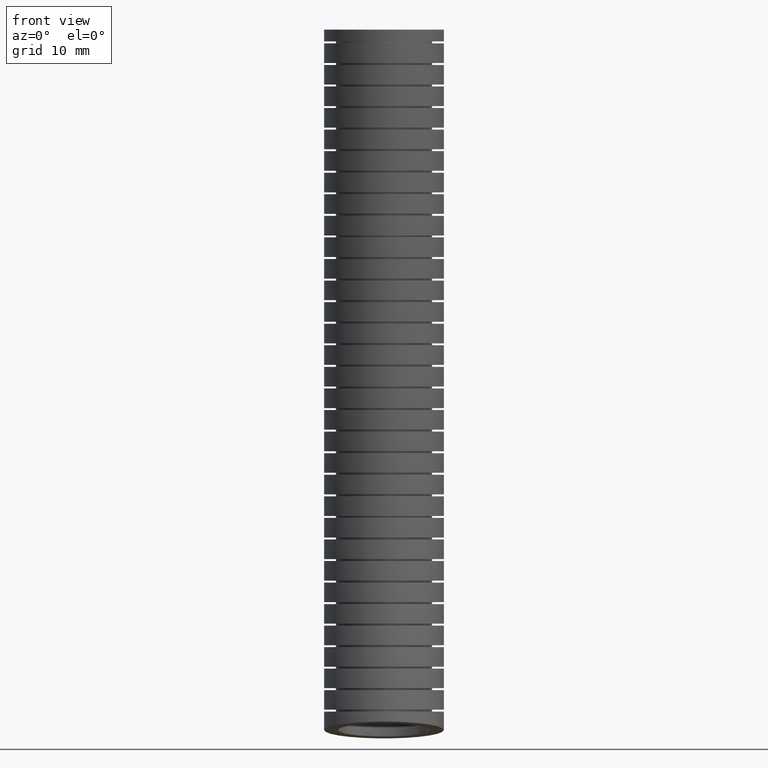
[diagram: clean part render]
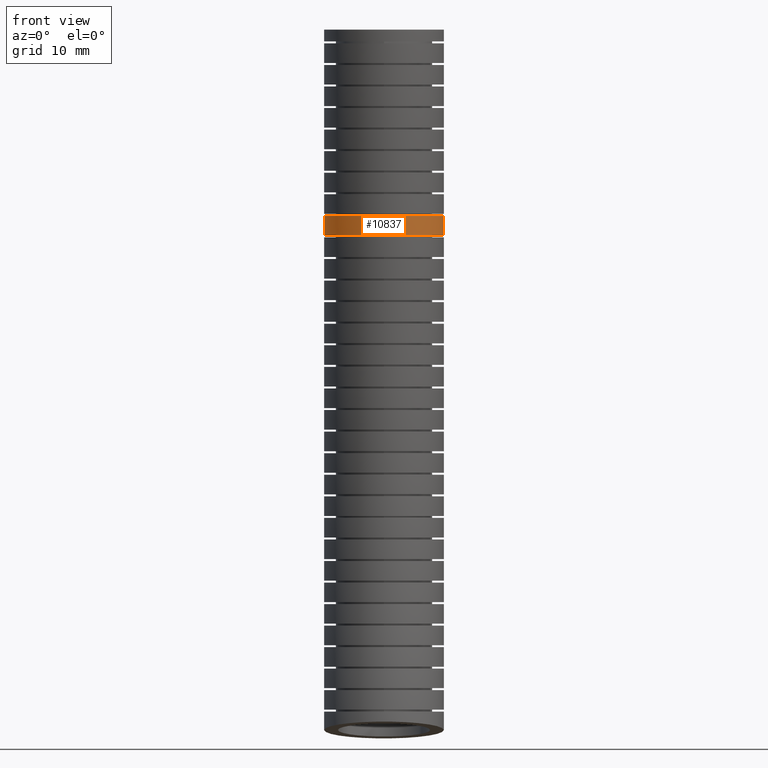
[diagram: same view with one face highlighted and labeled with its STEP entity id]
A machine part, front view. The second image highlights one B-rep face of the part: STEP entity #10837.
In plain terms, the highlighted face is a freeform B-spline surface patch.
Its self-contained STEP definition (entity closure, byte-faithful):
#3144 = VERTEX_POINT ( 'NONE', #7371 ) ;
#7371 = CARTESIAN_POINT ( 'NONE',  ( 0.3050000000000000500, 0.04331547454700521900, -1.049162933928018800 ) ) ;
#10830 = EDGE_LOOP ( 'NONE', ( #10869, #10874, #10849, #10853 ) ) ;
#10837 = ADVANCED_FACE ( 'NONE', ( #16019 ), #16076, .T. ) ;
#10838 = EDGE_CURVE ( 'NONE', #10868, #3144, #16078, .T. ) ;
#10843 = VERTEX_POINT ( 'NONE', #16165 ) ;
#10849 = ORIENTED_EDGE ( 'NONE', *, *, #10838, .T. ) ;
#10852 = EDGE_CURVE ( 'NONE', #10856, #3144, #16272, .T. ) ;
#10853 = ORIENTED_EDGE ( 'NONE', *, *, #10852, .F. ) ;
#10856 = VERTEX_POINT ( 'NONE', #16345 ) ;
#10868 = VERTEX_POINT ( 'NONE', #16505 ) ;
#10869 = ORIENTED_EDGE ( 'NONE', *, *, #10876, .T. ) ;
#10870 = EDGE_CURVE ( 'NONE', #10843, #10868, #16499, .T. ) ;
#10874 = ORIENTED_EDGE ( 'NONE', *, *, #10870, .T. ) ;
#10876 = EDGE_CURVE ( 'NONE', #10856, #10843, #16492, .T. ) ;
#16019 = FACE_OUTER_BOUND ( 'NONE', #10830, .T. ) ;
#16057 = CARTESIAN_POINT ( 'NONE',  ( -0.3050000000000001600, -0.5794800608306244200, -0.6605737911785694000 ) ) ;
#16058 = CARTESIAN_POINT ( 'NONE',  ( -0.3050000000000001000, -0.6100000000000001000, 0.0000000000000000000 ) ) ;
#16059 = CARTESIAN_POINT ( 'NONE',  ( 0.3049999999999999400, -0.6339397472009050700, -3.484228316147418800 ) ) ;
#16060 = CARTESIAN_POINT ( 'NONE',  ( 0.3049999999999999400, -0.6165911457587421900, -3.301565899820480900 ) ) ;
#16061 = CARTESIAN_POINT ( 'NONE',  ( 0.3049999999999999400, -0.5689348463287677800, -2.799795492787948300 ) ) ;
#16062 = CARTESIAN_POINT ( 'NONE',  ( 0.3050000000000000500, -0.5337097317260344200, -1.651227135941712300 ) ) ;
#16063 = CARTESIAN_POINT ( 'NONE',  ( 0.3050000000000000500, -0.5794800608306244200, -0.6605737911785694000 ) ) ;
#16064 = CARTESIAN_POINT ( 'NONE',  ( 0.3050000000000000500, -0.6100000000000001000, 0.0000000000000000000 ) ) ;
#16065 = CARTESIAN_POINT ( 'NONE',  ( 0.3049999999999999900, -0.02999999999999999900, -3.569999999999999400 ) ) ;
#16066 = CARTESIAN_POINT ( 'NONE',  ( 0.3049999999999999400, -0.01189670328115252300, -3.380058092153300100 ) ) ;
#16067 = CARTESIAN_POINT ( 'NONE',  ( 0.3049999999999999900, 0.03783273064349424600, -2.858291051460112500 ) ) ;
#16068 = CARTESIAN_POINT ( 'NONE',  ( 0.3049999999999999900, 0.07694042471324438700, -1.669468061939300500 ) ) ;
#16069 = CARTESIAN_POINT ( 'NONE',  ( 0.3050000000000000500, 0.03078003440073750300, -0.6678710777714059700 ) ) ;
#16070 = CARTESIAN_POINT ( 'NONE',  ( 0.3050000000000000500, 0.0000000000000000000, 0.0000000000000000000 ) ) ;
#16071 = CARTESIAN_POINT ( 'NONE',  ( -0.2947656487195840500, -0.03563502776016323100, -1.049162934120069200 ) ) ;
#16072 = CARTESIAN_POINT ( 'NONE',  ( -0.2972209294139726000, -0.02583249983281181400, -1.049162934120068600 ) ) ;
#16073 = CARTESIAN_POINT ( 'NONE',  ( -0.3030700833502435500, 0.003642539067587856900, -1.049162934120068600 ) ) ;
#16074 = CARTESIAN_POINT ( 'NONE',  ( -0.3049999999999999900, 0.02341769825993283600, -1.049162934120068100 ) ) ;
#16075 = CARTESIAN_POINT ( 'NONE',  ( -0.3050000000000000500, 0.04331547455917279800, -1.049162934120069200 ) ) ;
#16076 =( BOUNDED_SURFACE ( )  B_SPLINE_SURFACE ( 3, 3, ( 
 ( #16070, #16069, #16068, #16067, #16066, #16065 ),
 ( #16064, #16063, #16062, #16061, #16060, #16059 ),
 ( #16058, #16057, #16106, #16105, #16104, #16103 ),
 ( #16102, #16101, #16100, #16099, #16098, #16097 ),
 ( #16096, #16095, #16094, #16093, #16092, #16091 ),
 ( #16090, #16089, #16088, #16087, #16086, #16085 ),
 ( #16084, #16083, #16082, #16081, #16080, #16079 ) ),
 .UNSPECIFIED., .F., .F., .F. ) 
 B_SPLINE_SURFACE_WITH_KNOTS ( ( 4, 3, 4 ),
 ( 4, 1, 1, 4 ),
 ( 0.0000000000000000000, 0.5000000000000000000, 1.000000000000000000 ),
 ( 0.0000000000000000000, 0.5599999999999999400, 0.8398242262648183400, 1.000000000000000000 ),
 .UNSPECIFIED. ) 
 GEOMETRIC_REPRESENTATION_ITEM ( )  RATIONAL_B_SPLINE_SURFACE ( (
 ( 1.000000000000000000, 1.000000000000000000, 1.000000000000000200, 1.000000000000000000, 1.000000000000000000, 1.000000000000000000),
 ( 0.3333333333333333100, 0.3333333333333333100, 0.3333333333333333100, 0.3333333333333333100, 0.3333333333333333100, 0.3333333333333333100),
 ( 0.3333333333333333100, 0.3333333333333333100, 0.3333333333333333100, 0.3333333333333333100, 0.3333333333333333100, 0.3333333333333333100),
 ( 1.000000000000000000, 1.000000000000000000, 1.000000000000000200, 1.000000000000000000, 1.000000000000000000, 1.000000000000000000),
 ( 0.3333333333333333100, 0.3333333333333333100, 0.3333333333333333100, 0.3333333333333333100, 0.3333333333333333100, 0.3333333333333333100),
 ( 0.3333333333333333100, 0.3333333333333333100, 0.3333333333333333100, 0.3333333333333333100, 0.3333333333333333100, 0.3333333333333333100),
 ( 1.000000000000000000, 1.000000000000000000, 1.000000000000000200, 1.000000000000000000, 1.000000000000000000, 1.000000000000000000) ) ) 
 REPRESENTATION_ITEM ( '' )  SURFACE ( )  );
#16078 = B_SPLINE_CURVE_WITH_KNOTS ( 'NONE', 3,
 ( #16075, #16074, #16073, #16072, #16071, #16152, #16151, #16150, #16149, #16148, #16147, #16146, #16145, #16144, #16143, #16142, #16141, #16140, #16139, #16138, #16137, #16136, #16135, #16134, #16133, #16132, #16131, #16130, #16129, #16128, #16127, #16126, #16125, #16124, #16123, #16122, #16121, #16120, #16119, #16118, #16117, #16116, #16115, #16114, #16113 ),
 .UNSPECIFIED., .F., .F.,
 ( 4, 2, 2, 1, 2, 2, 2, 2, 2, 2, 2, 2, 2, 2, 2, 2, 2, 2, 2, 2, 2, 2, 4 ),
 ( 0.02421616499747639800, 0.02572932560927546800, 0.02648590591517499900, 0.02724248622107453300, 0.02799906652697406800, 0.02875564683287359900, 0.03026880744467266800, 0.03102538775057220300, 0.03178196805647174500, 0.03329512866827081400, 0.03405170897417034900, 0.03480828928006988300, 0.03632144989186895200, 0.03783461050366802900, 0.03859119080956756300, 0.03934777111546709800, 0.04086093172726616700, 0.04237409233906523600, 0.04388725295086430600, 0.04464383325676384700, 0.04540041356266338200, 0.04691357417446245800, 0.04842673478626152700 ),
 .UNSPECIFIED. ) ;
#16079 = CARTESIAN_POINT ( 'NONE',  ( 0.3049999999999999900, -0.02999999999999999900, -3.569999999999999400 ) ) ;
#16080 = CARTESIAN_POINT ( 'NONE',  ( 0.3049999999999999400, -0.01189670328115252300, -3.380058092153300100 ) ) ;
#16081 = CARTESIAN_POINT ( 'NONE',  ( 0.3049999999999999900, 0.03783273064349424600, -2.858291051460112500 ) ) ;
#16082 = CARTESIAN_POINT ( 'NONE',  ( 0.3049999999999999900, 0.07694042471324438700, -1.669468061939300500 ) ) ;
#16083 = CARTESIAN_POINT ( 'NONE',  ( 0.3050000000000000500, 0.03078003440073750300, -0.6678710777714059700 ) ) ;
#16084 = CARTESIAN_POINT ( 'NONE',  ( 0.3050000000000000500, 0.0000000000000000000, 0.0000000000000000000 ) ) ;
#16085 = CARTESIAN_POINT ( 'NONE',  ( 0.3049999999999999400, 0.5739397472009051300, -3.655771683852579600 ) ) ;
#16086 = CARTESIAN_POINT ( 'NONE',  ( 0.3049999999999999400, 0.5927977391964371900, -3.458550284486119800 ) ) ;
#16087 = CARTESIAN_POINT ( 'NONE',  ( 0.3049999999999999400, 0.6446003076157559300, -2.916786610132277200 ) ) ;
#16088 = CARTESIAN_POINT ( 'NONE',  ( 0.3050000000000000500, 0.6875905811525232500, -1.687708987936889400 ) ) ;
#16089 = CARTESIAN_POINT ( 'NONE',  ( 0.3050000000000000500, 0.6410401296320993300, -0.6751683643642422100 ) ) ;
#16090 = CARTESIAN_POINT ( 'NONE',  ( 0.3050000000000000500, 0.6100000000000001000, 0.0000000000000000000 ) ) ;
#16091 = CARTESIAN_POINT ( 'NONE',  ( -0.3049999999999998800, 0.5739397472009051300, -3.655771683852579600 ) ) ;
#16092 = CARTESIAN_POINT ( 'NONE',  ( -0.3049999999999998800, 0.5927977391964373000, -3.458550284486119800 ) ) ;
#16093 = CARTESIAN_POINT ( 'NONE',  ( -0.3049999999999999400, 0.6446003076157562600, -2.916786610132277200 ) ) ;
#16094 = CARTESIAN_POINT ( 'NONE',  ( -0.3049999999999999400, 0.6875905811525234700, -1.687708987936889400 ) ) ;
#16095 = CARTESIAN_POINT ( 'NONE',  ( -0.3049999999999999400, 0.6410401296320996600, -0.6751683643642422100 ) ) ;
#16096 = CARTESIAN_POINT ( 'NONE',  ( -0.3049999999999999400, 0.6100000000000001000, 0.0000000000000000000 ) ) ;
#16097 = CARTESIAN_POINT ( 'NONE',  ( -0.3049999999999999900, -0.02999999999999996100, -3.569999999999999400 ) ) ;
#16098 = CARTESIAN_POINT ( 'NONE',  ( -0.3049999999999999400, -0.01189670328115248300, -3.380058092153300100 ) ) ;
#16099 = CARTESIAN_POINT ( 'NONE',  ( -0.3049999999999999900, 0.03783273064349428100, -2.858291051460112500 ) ) ;
#16100 = CARTESIAN_POINT ( 'NONE',  ( -0.3049999999999999900, 0.07694042471324441500, -1.669468061939300500 ) ) ;
#16101 = CARTESIAN_POINT ( 'NONE',  ( -0.3050000000000000500, 0.03078003440073754200, -0.6678710777714059700 ) ) ;
#16102 = CARTESIAN_POINT ( 'NONE',  ( -0.3050000000000000500, 3.735172737399427600E-017, 0.0000000000000000000 ) ) ;
#16103 = CARTESIAN_POINT ( 'NONE',  ( -0.3050000000000000500, -0.6339397472009050700, -3.484228316147418800 ) ) ;
#16104 = CARTESIAN_POINT ( 'NONE',  ( -0.3050000000000000500, -0.6165911457587421900, -3.301565899820480900 ) ) ;
#16105 = CARTESIAN_POINT ( 'NONE',  ( -0.3050000000000000500, -0.5689348463287677800, -2.799795492787948300 ) ) ;
#16106 = CARTESIAN_POINT ( 'NONE',  ( -0.3050000000000001000, -0.5337097317260344200, -1.651227135941712300 ) ) ;
#16113 = CARTESIAN_POINT ( 'NONE',  ( 0.3050000000000000500, 0.04331547454700521900, -1.049162933928018800 ) ) ;
#16114 = CARTESIAN_POINT ( 'NONE',  ( 0.3050000000000000500, 0.02317176744360262300, -1.049162933928019300 ) ) ;
#16115 = CARTESIAN_POINT ( 'NONE',  ( 0.3030222877548453000, 0.003237038864360190000, -1.049162934120069200 ) ) ;
#16116 = CARTESIAN_POINT ( 'NONE',  ( 0.2951268771457881100, -0.03621612034270655500, -1.049162934120069200 ) ) ;
#16117 = CARTESIAN_POINT ( 'NONE',  ( 0.2892769260945471900, -0.05533046499384717400, -1.049162934120069000 ) ) ;
#16118 = CARTESIAN_POINT ( 'NONE',  ( 0.2778427811699792400, -0.08283823421906164100, -1.049162934120069200 ) ) ;
#16119 = CARTESIAN_POINT ( 'NONE',  ( 0.2735817161817181200, -0.09182825050033208100, -1.049162934120069000 ) ) ;
#16120 = CARTESIAN_POINT ( 'NONE',  ( 0.2641432875197031200, -0.1094430538542045400, -1.049162934120069000 ) ) ;
#16121 = CARTESIAN_POINT ( 'NONE',  ( 0.2589344581518469000, -0.1181094070726232500, -1.049162934120068100 ) ) ;
#16122 = CARTESIAN_POINT ( 'NONE',  ( 0.2422141441454417900, -0.1430477863992434500, -1.049162934120068600 ) ) ;
#16123 = CARTESIAN_POINT ( 'NONE',  ( 0.2295835202774256800, -0.1583804301652888300, -1.049162934120069200 ) ) ;
#16124 = CARTESIAN_POINT ( 'NONE',  ( 0.2014044709734982000, -0.1865031364374899700, -1.049162934120069000 ) ) ;
#16125 = CARTESIAN_POINT ( 'NONE',  ( 0.1856908748051097600, -0.1993664590482295300, -1.049162934120068300 ) ) ;
#16126 = CARTESIAN_POINT ( 'NONE',  ( 0.1525530701790392400, -0.2214380162105231400, -1.049162934120068600 ) ) ;
#16127 = CARTESIAN_POINT ( 'NONE',  ( 0.1350284107040282100, -0.2307910140539911600, -1.049162934120068600 ) ) ;
#16128 = CARTESIAN_POINT ( 'NONE',  ( 0.1072852633314680400, -0.2422566849853697300, -1.049162934120068300 ) ) ;
#16129 = CARTESIAN_POINT ( 'NONE',  ( 0.09776060479822329400, -0.2456527965792935400, -1.049162934120069000 ) ) ;
#16130 = CARTESIAN_POINT ( 'NONE',  ( 0.07862623069652435700, -0.2514302872974668000, -1.049162934120069200 ) ) ;
#16131 = CARTESIAN_POINT ( 'NONE',  ( 0.06897119860436105900, -0.2538338672577333300, -1.049162934120069000 ) ) ;
#16132 = CARTESIAN_POINT ( 'NONE',  ( 0.03974758829290948900, -0.2596168422585205500, -1.049162934120069000 ) ) ;
#16133 = CARTESIAN_POINT ( 'NONE',  ( 0.01985228353044283000, -0.2615822548598762400, -1.049162934120069000 ) ) ;
#16134 = CARTESIAN_POINT ( 'NONE',  ( -0.02036004930790413100, -0.2615487952442121000, -1.049162934120069000 ) ) ;
#16135 = CARTESIAN_POINT ( 'NONE',  ( -0.04015229493920984000, -0.2595643129351417100, -1.049162934120069200 ) ) ;
#16136 = CARTESIAN_POINT ( 'NONE',  ( -0.06938599152420765700, -0.2537375657451826900, -1.049162934120069000 ) ) ;
#16137 = CARTESIAN_POINT ( 'NONE',  ( -0.07905422395672140300, -0.2513168372500119700, -1.049162934120069200 ) ) ;
#16138 = CARTESIAN_POINT ( 'NONE',  ( -0.09823401721374955300, -0.2454933142085244100, -1.049162934120069200 ) ) ;
#16139 = CARTESIAN_POINT ( 'NONE',  ( -0.1077406117336127100, -0.2420844448823737100, -1.049162934120069000 ) ) ;
#16140 = CARTESIAN_POINT ( 'NONE',  ( -0.1353957180838138400, -0.2306061903421523000, -1.049162934120069000 ) ) ;
#16141 = CARTESIAN_POINT ( 'NONE',  ( -0.1529050251896830500, -0.2212378796709730500, -1.049162934120068600 ) ) ;
#16142 = CARTESIAN_POINT ( 'NONE',  ( -0.1777810372410862900, -0.2046171181634177700, -1.049162934120068100 ) ) ;
#16143 = CARTESIAN_POINT ( 'NONE',  ( -0.1858797472103277900, -0.1986120632311772800, -1.049162934120068300 ) ) ;
#16144 = CARTESIAN_POINT ( 'NONE',  ( -0.2013877261322932200, -0.1858741652511602900, -1.049162934120068300 ) ) ;
#16145 = CARTESIAN_POINT ( 'NONE',  ( -0.2087724140036648900, -0.1791692962603808300, -1.049162934120069200 ) ) ;
#16146 = CARTESIAN_POINT ( 'NONE',  ( -0.2298494449560469800, -0.1580750108281121500, -1.049162934120069000 ) ) ;
#16147 = CARTESIAN_POINT ( 'NONE',  ( -0.2424750866855125400, -0.1427153133780556200, -1.049162934120069000 ) ) ;
#16148 = CARTESIAN_POINT ( 'NONE',  ( -0.2592090146110014900, -0.1176705029191290300, -1.049162934120069200 ) ) ;
#16149 = CARTESIAN_POINT ( 'NONE',  ( -0.2643818694064686800, -0.1090285680589885600, -1.049162934120069200 ) ) ;
#16150 = CARTESIAN_POINT ( 'NONE',  ( -0.2737721920443504900, -0.09144055497298474200, -1.049162934120068800 ) ) ;
#16151 = CARTESIAN_POINT ( 'NONE',  ( -0.2822605684896317100, -0.07347033998028083800, -1.049162934120068800 ) ) ;
#16152 = CARTESIAN_POINT ( 'NONE',  ( -0.2889663444259558700, -0.05474474365884918200, -1.049162934120069000 ) ) ;
#16165 = CARTESIAN_POINT ( 'NONE',  ( -0.3050000000000001000, 0.04001663842392849700, -0.9492228530372716100 ) ) ;
#16272 = B_SPLINE_CURVE_WITH_KNOTS ( 'NONE', 3,
 ( #16349, #16348, #16347, #16346 ),
 .UNSPECIFIED., .F., .F.,
 ( 4, 4 ),
 ( 0.2653453320874097400, 0.2932928909244930100 ),
 .UNSPECIFIED. ) ;
#16345 = CARTESIAN_POINT ( 'NONE',  ( 0.3050000000000000500, 0.04001663841075638700, -0.9492228528452278900 ) ) ;
#16346 = CARTESIAN_POINT ( 'NONE',  ( 0.3050000000000000500, 0.04331547454700521900, -1.049162933928018800 ) ) ;
#16347 = CARTESIAN_POINT ( 'NONE',  ( 0.3050000000000000500, 0.04226022900334472400, -1.015851367588425100 ) ) ;
#16348 = CARTESIAN_POINT ( 'NONE',  ( 0.3050000000000000500, 0.04115916151736378300, -0.9825379483746941000 ) ) ;
#16349 = CARTESIAN_POINT ( 'NONE',  ( 0.3050000000000000500, 0.04001663841075638700, -0.9492228528452278900 ) ) ;
#16481 = CARTESIAN_POINT ( 'NONE',  ( 0.2296856936909329500, -0.1615747846042443800, -0.9492228530372710500 ) ) ;
#16482 = CARTESIAN_POINT ( 'NONE',  ( 0.2425727872983772000, -0.1458824907527037400, -0.9492228530372715000 ) ) ;
#16483 = CARTESIAN_POINT ( 'NONE',  ( 0.2647153478290461500, -0.1127352094026331400, -0.9492228530372712700 ) ) ;
#16484 = CARTESIAN_POINT ( 'NONE',  ( 0.2740876722578117800, -0.09522003278653079500, -0.9492228530372716100 ) ) ;
#16485 = CARTESIAN_POINT ( 'NONE',  ( 0.2855746712164937100, -0.06752218780742659500, -0.9492228530372717200 ) ) ;
#16486 = CARTESIAN_POINT ( 'NONE',  ( 0.2889840807458921600, -0.05800003845366299300, -0.9492228530372712700 ) ) ;
#16487 = CARTESIAN_POINT ( 'NONE',  ( 0.2947928345690175600, -0.03884046684877762900, -0.9492228530372710500 ) ) ;
#16488 = CARTESIAN_POINT ( 'NONE',  ( 0.2972084529174841000, -0.02917743885982429200, -0.9492228530372709400 ) ) ;
#16489 = CARTESIAN_POINT ( 'NONE',  ( 0.3030217543672190600, 5.579865194223348500E-005, -0.9492228530372710500 ) ) ;
#16490 = CARTESIAN_POINT ( 'NONE',  ( 0.3050000000000000500, 0.01986775755249230900, -0.9492228528452280000 ) ) ;
#16491 = CARTESIAN_POINT ( 'NONE',  ( 0.3050000000000000500, 0.04001663841075638700, -0.9492228528452278900 ) ) ;
#16492 = B_SPLINE_CURVE_WITH_KNOTS ( 'NONE', 3,
 ( #16491, #16490, #16489, #16488, #16487, #16486, #16485, #16484, #16483, #16482, #16481, #16553, #16552, #16551, #16550, #16549, #16548, #16547, #16546, #16545, #16544, #16543, #16542, #16541, #16540, #16539, #16538, #16537, #16536, #16535, #16534, #16533, #16532, #16531, #16530, #16529, #16528, #16527, #16526, #16525, #16524, #16523, #16522 ),
 .UNSPECIFIED., .F., .F.,
 ( 4, 2, 2, 2, 2, 2, 2, 2, 1, 2, 2, 2, 2, 2, 2, 2, 2, 2, 2, 2, 2, 4 ),
 ( 0.0000000000000000000, 0.001513550098517686400, 0.002270325147776530300, 0.003027100197035374100, 0.004540650295553060600, 0.006054200394070746600, 0.007567750492588432500, 0.008324525541847276400, 0.009081300591106119400, 0.009838075640364964100, 0.01059485068962380500, 0.01210840078814149100, 0.01362195088665917600, 0.01513550098517686000, 0.01589227603443570100, 0.01664905108369454600, 0.01816260118221223500, 0.01967615128072992500, 0.02043292632998877000, 0.02118970137924761400, 0.02270325147776530400, 0.02421680157628299300 ),
 .UNSPECIFIED. ) ;
#16493 = CARTESIAN_POINT ( 'NONE',  ( -0.3050000000000000500, 0.04331547455917279800, -1.049162934120069200 ) ) ;
#16494 = CARTESIAN_POINT ( 'NONE',  ( -0.3050000000000000500, 0.04226022900961099600, -1.015851367780677300 ) ) ;
#16495 = CARTESIAN_POINT ( 'NONE',  ( -0.3050000000000000500, 0.04115916152379801900, -0.9825379485669552000 ) ) ;
#16496 = CARTESIAN_POINT ( 'NONE',  ( -0.3050000000000001000, 0.04001663842392849700, -0.9492228530372716100 ) ) ;
#16499 = B_SPLINE_CURVE_WITH_KNOTS ( 'NONE', 3,
 ( #16496, #16495, #16494, #16493 ),
 .UNSPECIFIED., .F., .F.,
 ( 4, 4 ),
 ( 0.2653453321411737300, 0.2932928909782552800 ),
 .UNSPECIFIED. ) ;
#16505 = CARTESIAN_POINT ( 'NONE',  ( -0.3050000000000000500, 0.04331547455917279800, -1.049162934120069200 ) ) ;
#16522 = CARTESIAN_POINT ( 'NONE',  ( -0.3050000000000001000, 0.04001663842392849700, -0.9492228530372716100 ) ) ;
#16523 = CARTESIAN_POINT ( 'NONE',  ( -0.3050000000000001600, 0.02011374349144893000, -0.9492228530372716100 ) ) ;
#16524 = CARTESIAN_POINT ( 'NONE',  ( -0.3030046902995167100, -9.877823235582496500E-005, -0.9492228530372715000 ) ) ;
#16525 = CARTESIAN_POINT ( 'NONE',  ( -0.2952071454615420300, -0.03917189237849234100, -0.9492228530372717200 ) ) ;
#16526 = CARTESIAN_POINT ( 'NONE',  ( -0.2894406366302176800, -0.05818351272447244000, -0.9492228530372721600 ) ) ;
#16527 = CARTESIAN_POINT ( 'NONE',  ( -0.2779548121053509500, -0.08590385393512350900, -0.9492228530372720500 ) ) ;
#16528 = CARTESIAN_POINT ( 'NONE',  ( -0.2736259629116385400, -0.09504687561453834000, -0.9492228530372722700 ) ) ;
#16529 = CARTESIAN_POINT ( 'NONE',  ( -0.2641826858408916100, -0.1126841634919867200, -0.9492228530372718300 ) ) ;
#16530 = CARTESIAN_POINT ( 'NONE',  ( -0.2590560101005918700, -0.1212188393451031100, -0.9492228530372712700 ) ) ;
#16531 = CARTESIAN_POINT ( 'NONE',  ( -0.2424860932217192400, -0.1459886455436797700, -0.9492228530372717200 ) ) ;
#16532 = CARTESIAN_POINT ( 'NONE',  ( -0.2298382008968286900, -0.1614242156433859100, -0.9492228530372717200 ) ) ;
#16533 = CARTESIAN_POINT ( 'NONE',  ( -0.2013567636042544500, -0.1898778212529626500, -0.9492228530372720500 ) ) ;
#16534 = CARTESIAN_POINT ( 'NONE',  ( -0.1859508561015390000, -0.2024789305106288500, -0.9492228530372710500 ) ) ;
#16535 = CARTESIAN_POINT ( 'NONE',  ( -0.1611603970979538500, -0.2190343973878149400, -0.9492228530372710500 ) ) ;
#16536 = CARTESIAN_POINT ( 'NONE',  ( -0.1526145757754267800, -0.2241589672275995400, -0.9492228530372718300 ) ) ;
#16537 = CARTESIAN_POINT ( 'NONE',  ( -0.1349444681376899300, -0.2336010216002225000, -0.9492228530372718300 ) ) ;
#16538 = CARTESIAN_POINT ( 'NONE',  ( -0.1258033873381895800, -0.2379186271517509700, -0.9492228530372718300 ) ) ;
#16539 = CARTESIAN_POINT ( 'NONE',  ( -0.09810983964989579400, -0.2493690583640596500, -0.9492228530372715000 ) ) ;
#16540 = CARTESIAN_POINT ( 'NONE',  ( -0.07909881015459516200, -0.2551260925800387700, -0.9492228530372716100 ) ) ;
#16541 = CARTESIAN_POINT ( 'NONE',  ( -0.03998585196049950900, -0.2629089786507474200, -0.9492228530372718300 ) ) ;
#16542 = CARTESIAN_POINT ( 'NONE',  ( -0.01978360675722942000, -0.2648909358342629300, -0.9492228530372717200 ) ) ;
#16543 = CARTESIAN_POINT ( 'NONE',  ( 0.01999691765474517800, -0.2648770295815229800, -0.9492228530372720500 ) ) ;
#16544 = CARTESIAN_POINT ( 'NONE',  ( 0.03978517689259887500, -0.2629438630269045900, -0.9492228530372721600 ) ) ;
#16545 = CARTESIAN_POINT ( 'NONE',  ( 0.06931040710924305000, -0.2570763458002035500, -0.9492228530372715000 ) ) ;
#16546 = CARTESIAN_POINT ( 'NONE',  ( 0.07909626239217916500, -0.2546217215376439500, -0.9492228530372711600 ) ) ;
#16547 = CARTESIAN_POINT ( 'NONE',  ( 0.09818913822580166400, -0.2488243115704043600, -0.9492228530372716100 ) ) ;
#16548 = CARTESIAN_POINT ( 'NONE',  ( 0.1169089092337898800, -0.2421197246745964700, -0.9492228530372712700 ) ) ;
#16549 = CARTESIAN_POINT ( 'NONE',  ( 0.1348925527232675600, -0.2336252978855608300, -0.9492228530372715000 ) ) ;
#16550 = CARTESIAN_POINT ( 'NONE',  ( 0.1525025106428713200, -0.2242222821310684000, -0.9492228530372717200 ) ) ;
#16551 = CARTESIAN_POINT ( 'NONE',  ( 0.1611667088166409700, -0.2190339606490339700, -0.9492228530372712700 ) ) ;
#16552 = CARTESIAN_POINT ( 'NONE',  ( 0.1861777979860647600, -0.2023197638759084400, -0.9492228530372717200 ) ) ;
#16553 = CARTESIAN_POINT ( 'NONE',  ( 0.2015367071498610500, -0.1896998410198058000, -0.9492228530372711600 ) ) ;